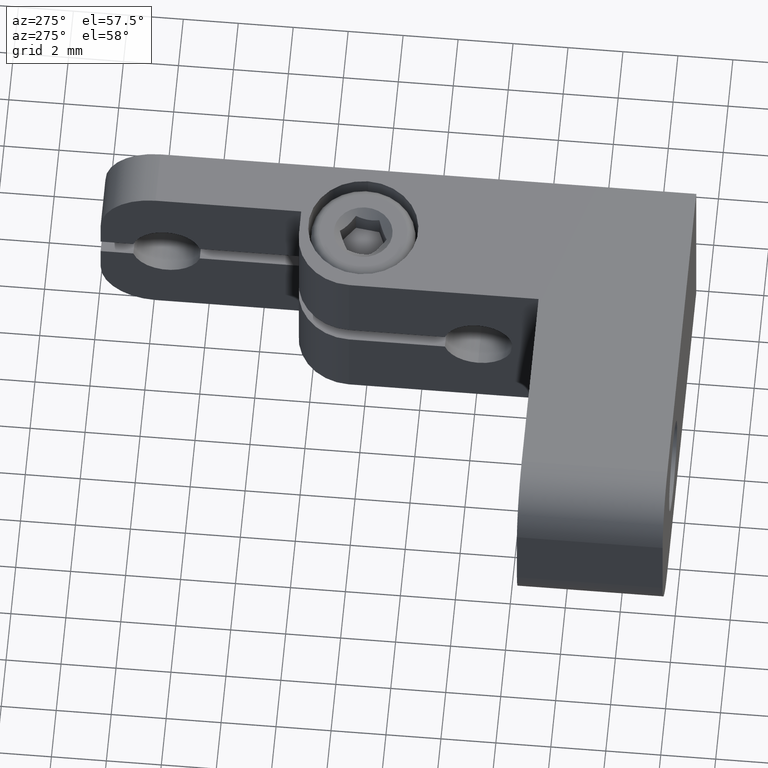
[diagram: clean part render]
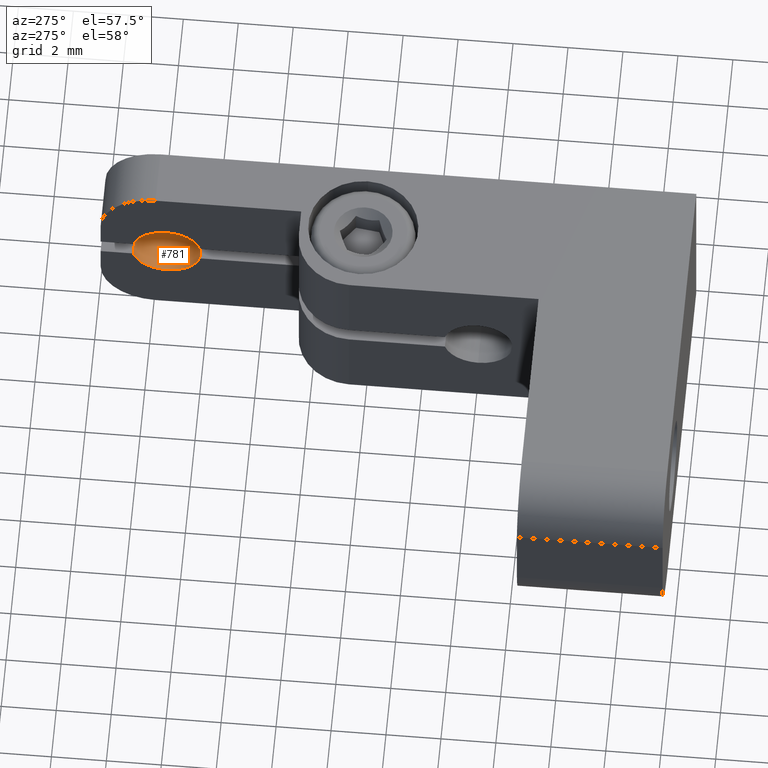
[diagram: same view with one face highlighted and labeled with its STEP entity id]
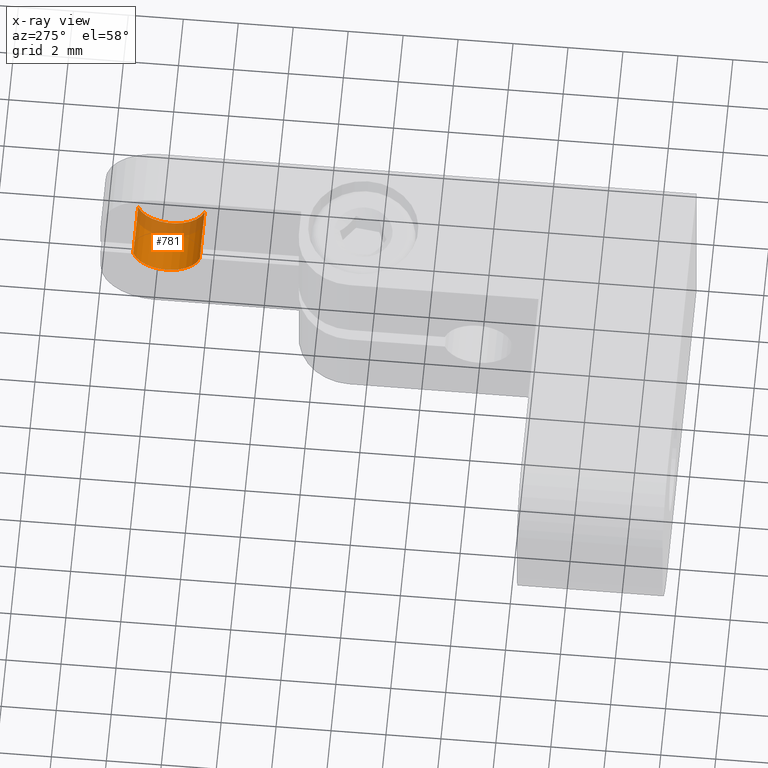
[diagram: x-ray of the same camera — body ghosted, the highlighted face saturated]
A machine part, auxiliary view. The second image highlights one B-rep face of the part: STEP entity #781.
The next image is the same camera in x-ray: the body ghosted, the highlighted face saturated — about 27% of this face is hidden behind the body in this view.
In plain terms, the highlighted cylindrical surface (edge-blend (fillet) strip) has radius 1.25 mm, axis along (-1, 0, 0).
Its self-contained STEP definition (entity closure, byte-faithful):
#173 = DIRECTION ( 'NONE',  ( 0.000000000000000000, 1.000000000000000000, 0.000000000000000000 ) ) ;
#176 = ORIENTED_EDGE ( 'NONE', *, *, #692, .T. ) ;
#381 = AXIS2_PLACEMENT_3D ( 'NONE', #573, #1418, #1259 ) ;
#437 = VERTEX_POINT ( 'NONE', #463 ) ;
#449 = DIRECTION ( 'NONE',  ( 0.000000000000000000, 0.000000000000000000, 1.000000000000000000 ) ) ;
#463 = CARTESIAN_POINT ( 'NONE',  ( 0.000000000000000000, 17.89165402305465591, -0.3200000000000000067 ) ) ;
#480 = CARTESIAN_POINT ( 'NONE',  ( -2.000000000000005329, 17.89165402305465591, -0.3199999999999998956 ) ) ;
#573 = CARTESIAN_POINT ( 'NONE',  ( 0.000000000000000000, 19.10000000000000142, -4.336808689942017736E-16 ) ) ;
#602 = CYLINDRICAL_SURFACE ( 'NONE', #1718, 1.250000000000000444 ) ;
#692 = EDGE_CURVE ( 'NONE', #437, #1939, #2034, .T. ) ;
#758 = DIRECTION ( 'NONE',  ( -1.000000000000000000, 0.000000000000000000, 0.000000000000000000 ) ) ;
#760 = EDGE_CURVE ( 'NONE', #1939, #958, #1753, .T. ) ;
#781 = ADVANCED_FACE ( 'NONE', ( #2116 ), #602, .F. ) ;
#863 = CARTESIAN_POINT ( 'NONE',  ( 0.000000000000000000, 20.30834597694535049, -0.3199999999999996736 ) ) ;
#880 = DIRECTION ( 'NONE',  ( 1.000000000000000000, -0.000000000000000000, -0.000000000000000000 ) ) ;
#947 = EDGE_CURVE ( 'NONE', #1248, #437, #1695, .T. ) ;
#958 = VERTEX_POINT ( 'NONE', #2075 ) ;
#1051 = VECTOR ( 'NONE', #758, 1000.000000000000000 ) ;
#1079 = VECTOR ( 'NONE', #880, 1000.000000000000000 ) ;
#1114 = CARTESIAN_POINT ( 'NONE',  ( 1.200000000000000030E-05, 19.10000000000000142, -4.336808689942017736E-16 ) ) ;
#1183 = CARTESIAN_POINT ( 'NONE',  ( -2.000000000000000000, 19.10000000000000142, -4.336808689942017736E-16 ) ) ;
#1248 = VERTEX_POINT ( 'NONE', #480 ) ;
#1259 = DIRECTION ( 'NONE',  ( 0.000000000000000000, 0.000000000000000000, 1.000000000000000000 ) ) ;
#1267 = CARTESIAN_POINT ( 'NONE',  ( -14.00099999999999945, 20.30834597694535049, -0.3199999999999996181 ) ) ;
#1350 = CARTESIAN_POINT ( 'NONE',  ( -14.00099999999999945, 17.89165402305465591, -0.3199999999999998956 ) ) ;
#1372 = AXIS2_PLACEMENT_3D ( 'NONE', #1183, #1844, #173 ) ;
#1418 = DIRECTION ( 'NONE',  ( 1.000000000000000000, -0.000000000000000000, -0.000000000000000000 ) ) ;
#1472 = ORIENTED_EDGE ( 'NONE', *, *, #947, .T. ) ;
#1695 = LINE ( 'NONE', #1350, #1079 ) ;
#1718 = AXIS2_PLACEMENT_3D ( 'NONE', #1114, #1950, #449 ) ;
#1729 = EDGE_LOOP ( 'NONE', ( #176, #1976, #2037, #1472 ) ) ;
#1753 = LINE ( 'NONE', #1267, #1051 ) ;
#1798 = EDGE_CURVE ( 'NONE', #958, #1248, #2042, .T. ) ;
#1844 = DIRECTION ( 'NONE',  ( -1.000000000000000000, -1.188166764367676342E-16, 0.000000000000000000 ) ) ;
#1939 = VERTEX_POINT ( 'NONE', #863 ) ;
#1950 = DIRECTION ( 'NONE',  ( -1.000000000000000000, 0.000000000000000000, 0.000000000000000000 ) ) ;
#1976 = ORIENTED_EDGE ( 'NONE', *, *, #760, .T. ) ;
#2034 = CIRCLE ( 'NONE', #381, 1.250000000000000444 ) ;
#2037 = ORIENTED_EDGE ( 'NONE', *, *, #1798, .T. ) ;
#2042 = CIRCLE ( 'NONE', #1372, 1.250000000000001110 ) ;
#2075 = CARTESIAN_POINT ( 'NONE',  ( -2.000000000000000000, 20.30834597694535049, -0.3199999999999996736 ) ) ;
#2116 = FACE_OUTER_BOUND ( 'NONE', #1729, .T. ) ;